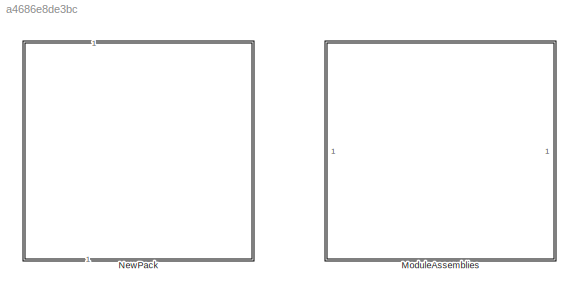
MODEL slx_a4686e8de3bc
KIND library
CONFIG SolverName = VariableStepAuto
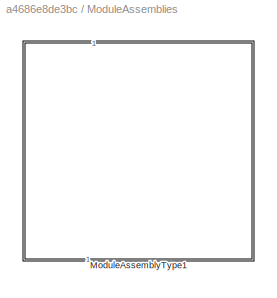
BLOCK [SubSystem] ModuleAssemblies
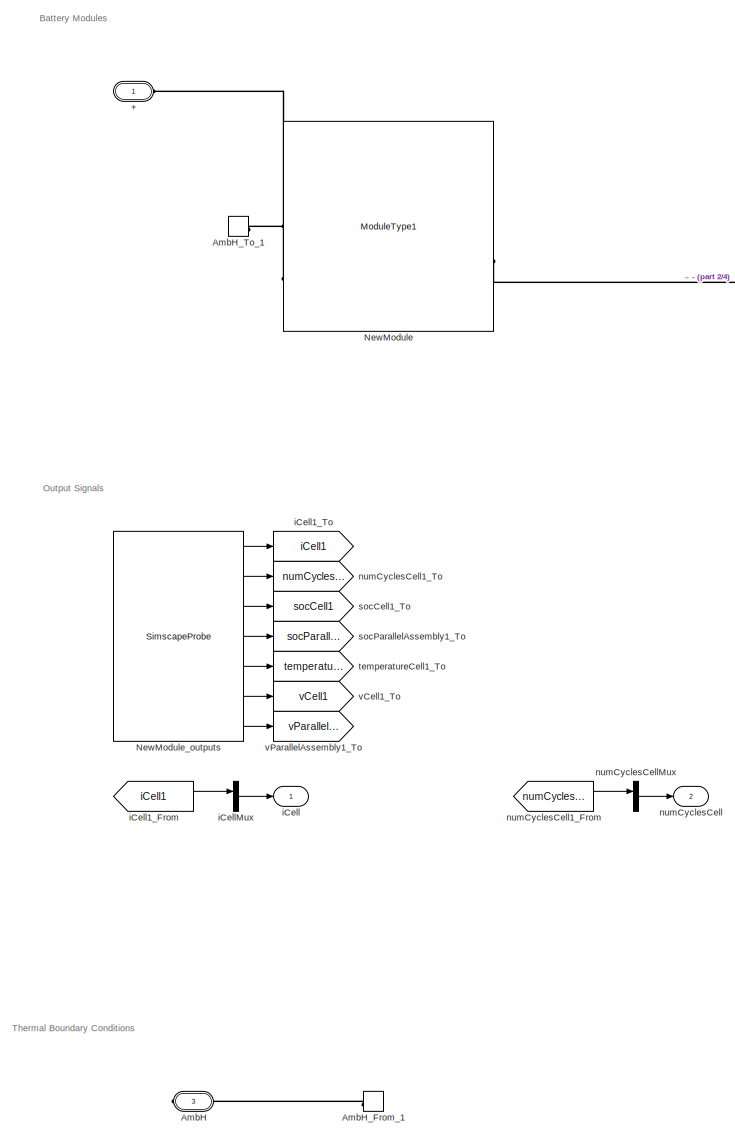
[diagram: ModuleAssemblies/ModuleAssemblyType1 - part 1/4, left side, full height]
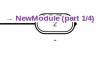
[diagram: ModuleAssemblies/ModuleAssemblyType1 - part 2/4, top right region]
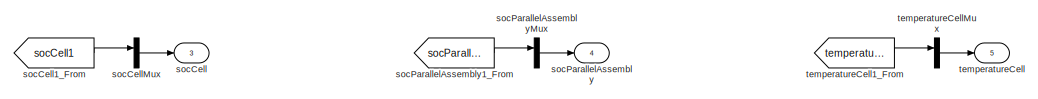
[diagram: ModuleAssemblies/ModuleAssemblyType1 - part 3/4, bottom center region]
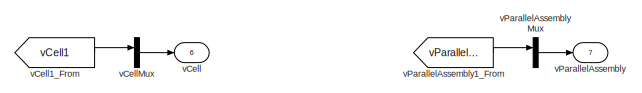
[diagram: ModuleAssemblies/ModuleAssemblyType1 - part 4/4, bottom right region]
BLOCK [SubSystem] ModuleAssemblies/ModuleAssemblyType1
  CopyFcn = battery_builder_rtmsupport('copyfcn',gcbh);
  LoadFcn = battery_builder_rtmsupport('loadfcn',gcbh);
  PortSchema = {"entries":[{"content":{"sides":[{"content":{"connectorIds":["LConn1"]},"type":"ConnectorPlacement.EquallySpacedRectSide","uuid":"b80c7ed6-8bcf-495e-8bd2-4ce7b8933480"},{"content":{"connectorIds":["RConn1","RConn2"],"side":"RIGHT"},"type":"ConnectorPlacement.EquallySpacedRectSide","uuid":"649142ec-37a1-41a5-9b4e-f1dba192e47a"},{"content":{"side":"TOP"},"type":"ConnectorPlacement.EquallySpacedRectS...<+428ch>  <repeated x4 — deduplicated; at blocks: ModuleAssemblyType1, NewPack, ModuleAssembly2, NewModuleAssembly>
  PreCopyFcn = battery_builder_rtmsupport('precopyfcn',gcbh);
  PreDeleteFcn = battery_builder_rtmsupport('predeletefcn',gcbh);
BLOCK [PMIOPort] ModuleAssemblies/ModuleAssemblyType1/+
  Side = Left
BLOCK [PMIOPort] ModuleAssemblies/ModuleAssemblyType1/-
  Port = 2
  Side = Right
BLOCK [PMIOPort] ModuleAssemblies/ModuleAssemblyType1/AmbH
  ConnectionType = Connection: foundation.thermal.thermal
  Port = 3
  Side = Right
BLOCK [ConnectionLabel] ModuleAssemblies/ModuleAssemblyType1/AmbH_From_1
  Label = ambH_1
BLOCK [ConnectionLabel] ModuleAssemblies/ModuleAssemblyType1/AmbH_To_1
  Label = ambH_1
BLOCK [Reference] ModuleAssemblies/ModuleAssemblyType1/NewModule  REF=Battery_Pack_lib/Modules/ModuleType1
  SourceBlock = Battery_Pack_lib/Modules/ModuleType1
  SourceType = ModuleType1
BLOCK [SimscapeProbe] ModuleAssemblies/ModuleAssemblyType1/NewModule_outputs
  BoundBlock = 3
  Variables = {"iCell":{"Probing":"ON"},"numCyclesCell":{"Probing":"ON"},"socCell":{"Probing":"ON"},"socParallelAssembly":{"Probing":"ON"},"temperatureCell":{"Probing":"ON"},"vCell":{"Probing":"ON"},"vParallelAssembly":{"Probing":"ON"}}  <repeated x3 — deduplicated; at blocks: NewModule_outputs>
BLOCK [Outport] ModuleAssemblies/ModuleAssemblyType1/iCell
BLOCK [From] ModuleAssemblies/ModuleAssemblyType1/iCell1_From
  GotoTag = iCell1
BLOCK [Goto] ModuleAssemblies/ModuleAssemblyType1/iCell1_To
  GotoTag = iCell1
BLOCK [Mux] ModuleAssemblies/ModuleAssemblyType1/iCellMux
  DisplayOption = bar
  Inputs = 1
BLOCK [Outport] ModuleAssemblies/ModuleAssemblyType1/numCyclesCell
  Port = 2
BLOCK [From] ModuleAssemblies/ModuleAssemblyType1/numCyclesCell1_From
  GotoTag = numCyclesCell1
BLOCK [Goto] ModuleAssemblies/ModuleAssemblyType1/numCyclesCell1_To
  GotoTag = numCyclesCell1
BLOCK [Mux] ModuleAssemblies/ModuleAssemblyType1/numCyclesCellMux
  DisplayOption = bar
  Inputs = 1
BLOCK [Outport] ModuleAssemblies/ModuleAssemblyType1/socCell
  Port = 3
BLOCK [From] ModuleAssemblies/ModuleAssemblyType1/socCell1_From
  GotoTag = socCell1
BLOCK [Goto] ModuleAssemblies/ModuleAssemblyType1/socCell1_To
  GotoTag = socCell1
BLOCK [Mux] ModuleAssemblies/ModuleAssemblyType1/socCellMux
  DisplayOption = bar
  Inputs = 1
BLOCK [Outport] ModuleAssemblies/ModuleAssemblyType1/socParallelAssembly
  Port = 4
BLOCK [From] ModuleAssemblies/ModuleAssemblyType1/socParallelAssembly1_From
  GotoTag = socParallelAssembly1
BLOCK [Goto] ModuleAssemblies/ModuleAssemblyType1/socParallelAssembly1_To
  GotoTag = socParallelAssembly1
BLOCK [Mux] ModuleAssemblies/ModuleAssemblyType1/socParallelAssemblyMux
  DisplayOption = bar
  Inputs = 1
BLOCK [Outport] ModuleAssemblies/ModuleAssemblyType1/temperatureCell
  Port = 5
BLOCK [From] ModuleAssemblies/ModuleAssemblyType1/temperatureCell1_From
  GotoTag = temperatureCell1
BLOCK [Goto] ModuleAssemblies/ModuleAssemblyType1/temperatureCell1_To
  GotoTag = temperatureCell1
BLOCK [Mux] ModuleAssemblies/ModuleAssemblyType1/temperatureCellMux
  DisplayOption = bar
  Inputs = 1
BLOCK [Outport] ModuleAssemblies/ModuleAssemblyType1/vCell
  Port = 6
BLOCK [From] ModuleAssemblies/ModuleAssemblyType1/vCell1_From
  GotoTag = vCell1
BLOCK [Goto] ModuleAssemblies/ModuleAssemblyType1/vCell1_To
  GotoTag = vCell1
BLOCK [Mux] ModuleAssemblies/ModuleAssemblyType1/vCellMux
  DisplayOption = bar
  Inputs = 1
BLOCK [Outport] ModuleAssemblies/ModuleAssemblyType1/vParallelAssembly
  Port = 7
BLOCK [From] ModuleAssemblies/ModuleAssemblyType1/vParallelAssembly1_From
  GotoTag = vParallelAssembly1
BLOCK [Goto] ModuleAssemblies/ModuleAssemblyType1/vParallelAssembly1_To
  GotoTag = vParallelAssembly1
BLOCK [Mux] ModuleAssemblies/ModuleAssemblyType1/vParallelAssemblyMux
  DisplayOption = bar
  Inputs = 1
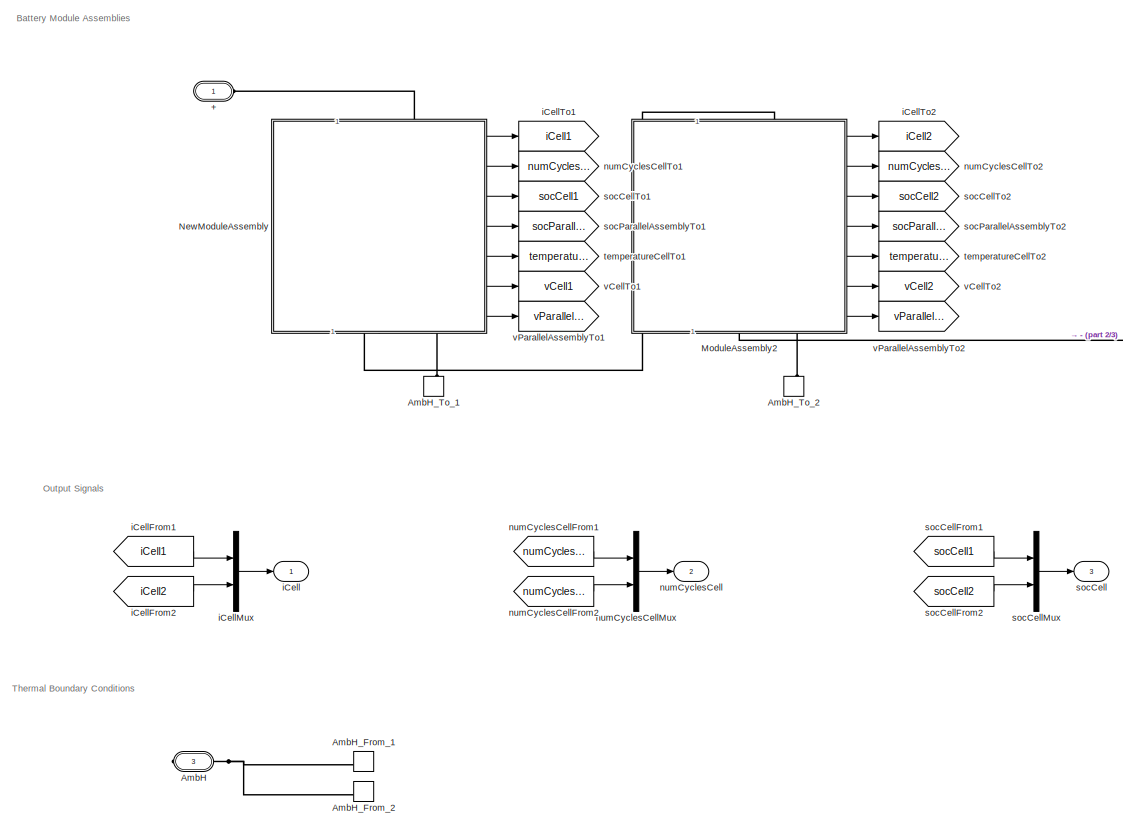
[diagram: NewPack - part 1/3, left side, full height]
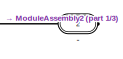
[diagram: NewPack - part 2/3, top right region]
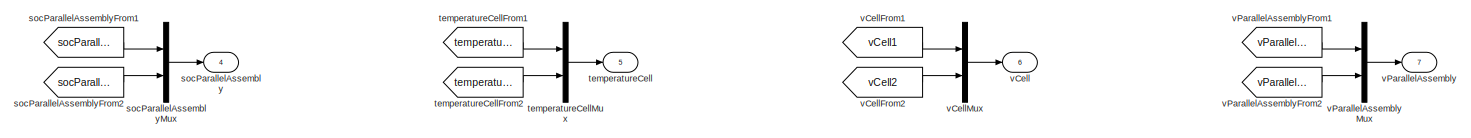
[diagram: NewPack - part 3/3, bottom right region]
BLOCK [SubSystem] NewPack
  CopyFcn = battery_builder_rtmsupport('copyfcn',gcbh);
  LoadFcn = battery_builder_rtmsupport('loadfcn',gcbh);
  PreCopyFcn = battery_builder_rtmsupport('precopyfcn',gcbh);
  PreDeleteFcn = battery_builder_rtmsupport('predeletefcn',gcbh);
BLOCK [PMIOPort] NewPack/+
  Side = Left
BLOCK [PMIOPort] NewPack/-
  Port = 2
  Side = Right
BLOCK [PMIOPort] NewPack/AmbH
  ConnectionType = Connection: foundation.thermal.thermal
  Port = 3
  Side = Right
BLOCK [ConnectionLabel] NewPack/AmbH_From_1
  Label = ambH_1
BLOCK [ConnectionLabel] NewPack/AmbH_From_2
  Label = ambH_2
BLOCK [ConnectionLabel] NewPack/AmbH_To_1
  Label = ambH_1
  NameLocation = right
BLOCK [ConnectionLabel] NewPack/AmbH_To_2
  Label = ambH_2
  NameLocation = right
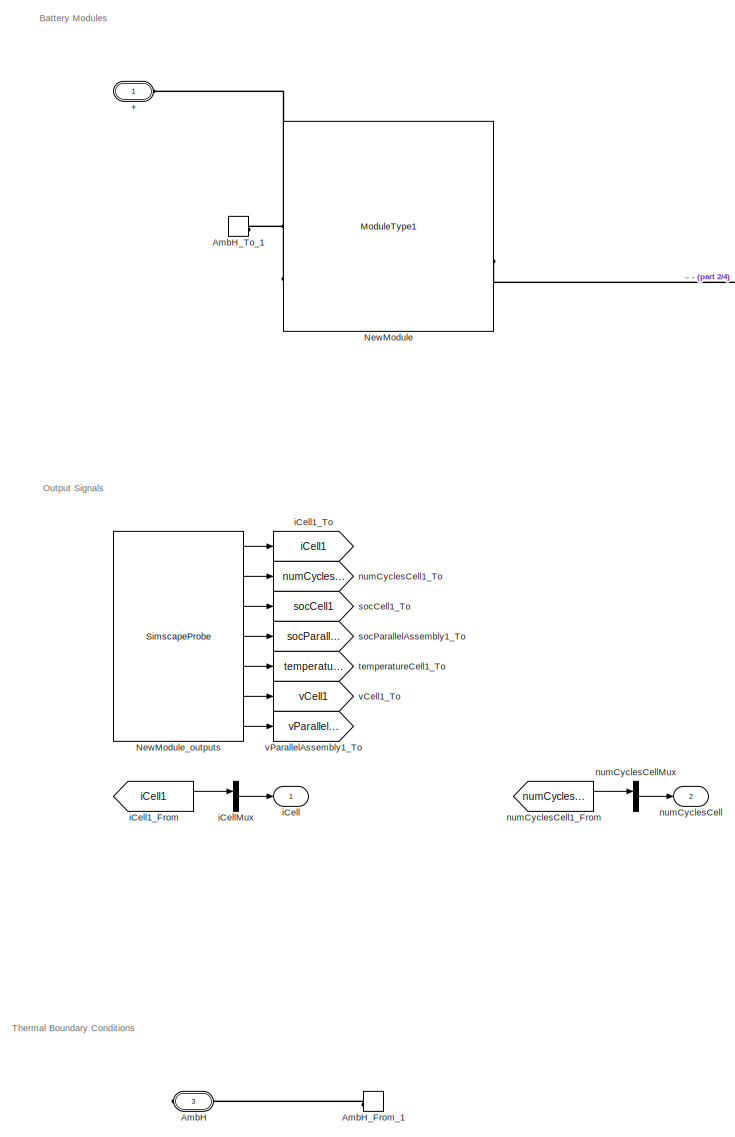
[diagram: NewPack/ModuleAssembly2 - part 1/4, left side, full height]
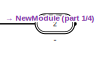
[diagram: NewPack/ModuleAssembly2 - part 2/4, top right region]
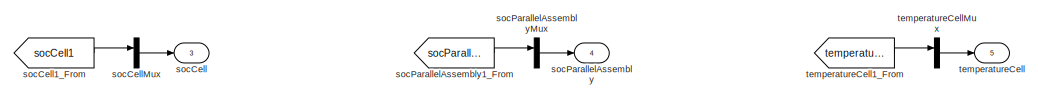
[diagram: NewPack/ModuleAssembly2 - part 3/4, bottom center region]
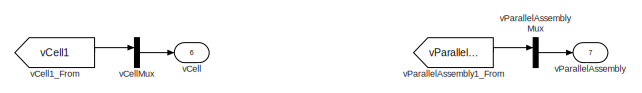
[diagram: NewPack/ModuleAssembly2 - part 4/4, bottom right region]
BLOCK [SubSystem] NewPack/ModuleAssembly2
  CopyFcn = battery_builder_rtmsupport('copyfcn',gcbh);
  LoadFcn = battery_builder_rtmsupport('loadfcn',gcbh);
  PreCopyFcn = battery_builder_rtmsupport('precopyfcn',gcbh);
  PreDeleteFcn = battery_builder_rtmsupport('predeletefcn',gcbh);
BLOCK [PMIOPort] NewPack/ModuleAssembly2/+
  Side = Left
BLOCK [PMIOPort] NewPack/ModuleAssembly2/-
  Port = 2
  Side = Right
BLOCK [PMIOPort] NewPack/ModuleAssembly2/AmbH
  ConnectionType = Connection: foundation.thermal.thermal
  Port = 3
  Side = Right
BLOCK [ConnectionLabel] NewPack/ModuleAssembly2/AmbH_From_1
  Label = ambH_1
BLOCK [ConnectionLabel] NewPack/ModuleAssembly2/AmbH_To_1
  Label = ambH_1
BLOCK [Reference] NewPack/ModuleAssembly2/NewModule  REF=Battery_Pack_lib/Modules/ModuleType1
  SourceBlock = Battery_Pack_lib/Modules/ModuleType1
  SourceType = ModuleType1
BLOCK [SimscapeProbe] NewPack/ModuleAssembly2/NewModule_outputs
  BoundBlock = 84
BLOCK [Outport] NewPack/ModuleAssembly2/iCell
BLOCK [From] NewPack/ModuleAssembly2/iCell1_From
  GotoTag = iCell1
BLOCK [Goto] NewPack/ModuleAssembly2/iCell1_To
  GotoTag = iCell1
BLOCK [Mux] NewPack/ModuleAssembly2/iCellMux
  DisplayOption = bar
  Inputs = 1
BLOCK [Outport] NewPack/ModuleAssembly2/numCyclesCell
  Port = 2
BLOCK [From] NewPack/ModuleAssembly2/numCyclesCell1_From
  GotoTag = numCyclesCell1
BLOCK [Goto] NewPack/ModuleAssembly2/numCyclesCell1_To
  GotoTag = numCyclesCell1
BLOCK [Mux] NewPack/ModuleAssembly2/numCyclesCellMux
  DisplayOption = bar
  Inputs = 1
BLOCK [Outport] NewPack/ModuleAssembly2/socCell
  Port = 3
BLOCK [From] NewPack/ModuleAssembly2/socCell1_From
  GotoTag = socCell1
BLOCK [Goto] NewPack/ModuleAssembly2/socCell1_To
  GotoTag = socCell1
BLOCK [Mux] NewPack/ModuleAssembly2/socCellMux
  DisplayOption = bar
  Inputs = 1
BLOCK [Outport] NewPack/ModuleAssembly2/socParallelAssembly
  Port = 4
BLOCK [From] NewPack/ModuleAssembly2/socParallelAssembly1_From
  GotoTag = socParallelAssembly1
BLOCK [Goto] NewPack/ModuleAssembly2/socParallelAssembly1_To
  GotoTag = socParallelAssembly1
BLOCK [Mux] NewPack/ModuleAssembly2/socParallelAssemblyMux
  DisplayOption = bar
  Inputs = 1
BLOCK [Outport] NewPack/ModuleAssembly2/temperatureCell
  Port = 5
BLOCK [From] NewPack/ModuleAssembly2/temperatureCell1_From
  GotoTag = temperatureCell1
BLOCK [Goto] NewPack/ModuleAssembly2/temperatureCell1_To
  GotoTag = temperatureCell1
BLOCK [Mux] NewPack/ModuleAssembly2/temperatureCellMux
  DisplayOption = bar
  Inputs = 1
BLOCK [Outport] NewPack/ModuleAssembly2/vCell
  Port = 6
BLOCK [From] NewPack/ModuleAssembly2/vCell1_From
  GotoTag = vCell1
BLOCK [Goto] NewPack/ModuleAssembly2/vCell1_To
  GotoTag = vCell1
BLOCK [Mux] NewPack/ModuleAssembly2/vCellMux
  DisplayOption = bar
  Inputs = 1
BLOCK [Outport] NewPack/ModuleAssembly2/vParallelAssembly
  Port = 7
BLOCK [From] NewPack/ModuleAssembly2/vParallelAssembly1_From
  GotoTag = vParallelAssembly1
BLOCK [Goto] NewPack/ModuleAssembly2/vParallelAssembly1_To
  GotoTag = vParallelAssembly1
BLOCK [Mux] NewPack/ModuleAssembly2/vParallelAssemblyMux
  DisplayOption = bar
  Inputs = 1
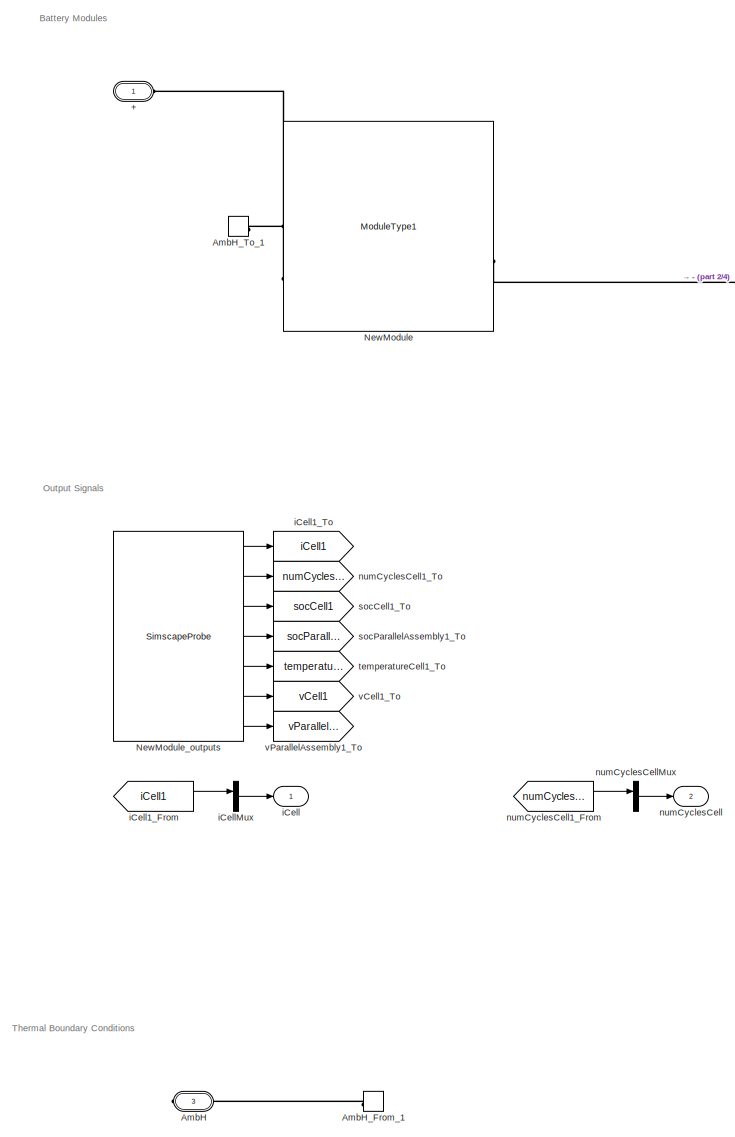
[diagram: NewPack/NewModuleAssembly - part 1/4, left side, full height]
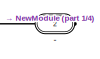
[diagram: NewPack/NewModuleAssembly - part 2/4, top right region]
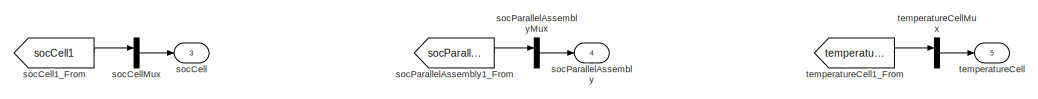
[diagram: NewPack/NewModuleAssembly - part 3/4, bottom center region]
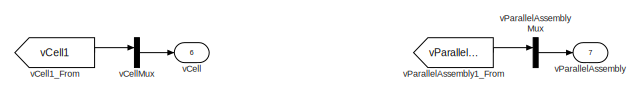
[diagram: NewPack/NewModuleAssembly - part 4/4, bottom right region]
BLOCK [SubSystem] NewPack/NewModuleAssembly
  CopyFcn = battery_builder_rtmsupport('copyfcn',gcbh);
  LoadFcn = battery_builder_rtmsupport('loadfcn',gcbh);
  PreCopyFcn = battery_builder_rtmsupport('precopyfcn',gcbh);
  PreDeleteFcn = battery_builder_rtmsupport('predeletefcn',gcbh);
BLOCK [PMIOPort] NewPack/NewModuleAssembly/+
  Side = Left
BLOCK [PMIOPort] NewPack/NewModuleAssembly/-
  Port = 2
  Side = Right
BLOCK [PMIOPort] NewPack/NewModuleAssembly/AmbH
  ConnectionType = Connection: foundation.thermal.thermal
  Port = 3
  Side = Right
BLOCK [ConnectionLabel] NewPack/NewModuleAssembly/AmbH_From_1
  Label = ambH_1
BLOCK [ConnectionLabel] NewPack/NewModuleAssembly/AmbH_To_1
  Label = ambH_1
BLOCK [Reference] NewPack/NewModuleAssembly/NewModule  REF=Battery_Pack_lib/Modules/ModuleType1
  SourceBlock = Battery_Pack_lib/Modules/ModuleType1
  SourceType = ModuleType1
BLOCK [SimscapeProbe] NewPack/NewModuleAssembly/NewModule_outputs
  BoundBlock = 45
BLOCK [Outport] NewPack/NewModuleAssembly/iCell
BLOCK [From] NewPack/NewModuleAssembly/iCell1_From
  GotoTag = iCell1
BLOCK [Goto] NewPack/NewModuleAssembly/iCell1_To
  GotoTag = iCell1
BLOCK [Mux] NewPack/NewModuleAssembly/iCellMux
  DisplayOption = bar
  Inputs = 1
BLOCK [Outport] NewPack/NewModuleAssembly/numCyclesCell
  Port = 2
BLOCK [From] NewPack/NewModuleAssembly/numCyclesCell1_From
  GotoTag = numCyclesCell1
BLOCK [Goto] NewPack/NewModuleAssembly/numCyclesCell1_To
  GotoTag = numCyclesCell1
BLOCK [Mux] NewPack/NewModuleAssembly/numCyclesCellMux
  DisplayOption = bar
  Inputs = 1
BLOCK [Outport] NewPack/NewModuleAssembly/socCell
  Port = 3
BLOCK [From] NewPack/NewModuleAssembly/socCell1_From
  GotoTag = socCell1
BLOCK [Goto] NewPack/NewModuleAssembly/socCell1_To
  GotoTag = socCell1
BLOCK [Mux] NewPack/NewModuleAssembly/socCellMux
  DisplayOption = bar
  Inputs = 1
BLOCK [Outport] NewPack/NewModuleAssembly/socParallelAssembly
  Port = 4
BLOCK [From] NewPack/NewModuleAssembly/socParallelAssembly1_From
  GotoTag = socParallelAssembly1
BLOCK [Goto] NewPack/NewModuleAssembly/socParallelAssembly1_To
  GotoTag = socParallelAssembly1
BLOCK [Mux] NewPack/NewModuleAssembly/socParallelAssemblyMux
  DisplayOption = bar
  Inputs = 1
BLOCK [Outport] NewPack/NewModuleAssembly/temperatureCell
  Port = 5
BLOCK [From] NewPack/NewModuleAssembly/temperatureCell1_From
  GotoTag = temperatureCell1
BLOCK [Goto] NewPack/NewModuleAssembly/temperatureCell1_To
  GotoTag = temperatureCell1
BLOCK [Mux] NewPack/NewModuleAssembly/temperatureCellMux
  DisplayOption = bar
  Inputs = 1
BLOCK [Outport] NewPack/NewModuleAssembly/vCell
  Port = 6
BLOCK [From] NewPack/NewModuleAssembly/vCell1_From
  GotoTag = vCell1
BLOCK [Goto] NewPack/NewModuleAssembly/vCell1_To
  GotoTag = vCell1
BLOCK [Mux] NewPack/NewModuleAssembly/vCellMux
  DisplayOption = bar
  Inputs = 1
BLOCK [Outport] NewPack/NewModuleAssembly/vParallelAssembly
  Port = 7
BLOCK [From] NewPack/NewModuleAssembly/vParallelAssembly1_From
  GotoTag = vParallelAssembly1
BLOCK [Goto] NewPack/NewModuleAssembly/vParallelAssembly1_To
  GotoTag = vParallelAssembly1
BLOCK [Mux] NewPack/NewModuleAssembly/vParallelAssemblyMux
  DisplayOption = bar
  Inputs = 1
BLOCK [Outport] NewPack/iCell
BLOCK [From] NewPack/iCellFrom1
  GotoTag = iCell1
BLOCK [From] NewPack/iCellFrom2
  GotoTag = iCell2
BLOCK [Mux] NewPack/iCellMux
  DisplayOption = bar
  Inputs = 2
BLOCK [Goto] NewPack/iCellTo1
  GotoTag = iCell1
BLOCK [Goto] NewPack/iCellTo2
  GotoTag = iCell2
BLOCK [Outport] NewPack/numCyclesCell
  Port = 2
BLOCK [From] NewPack/numCyclesCellFrom1
  GotoTag = numCyclesCell1
BLOCK [From] NewPack/numCyclesCellFrom2
  GotoTag = numCyclesCell2
BLOCK [Mux] NewPack/numCyclesCellMux
  DisplayOption = bar
  Inputs = 2
BLOCK [Goto] NewPack/numCyclesCellTo1
  GotoTag = numCyclesCell1
BLOCK [Goto] NewPack/numCyclesCellTo2
  GotoTag = numCyclesCell2
BLOCK [Outport] NewPack/socCell
  Port = 3
BLOCK [From] NewPack/socCellFrom1
  GotoTag = socCell1
BLOCK [From] NewPack/socCellFrom2
  GotoTag = socCell2
BLOCK [Mux] NewPack/socCellMux
  DisplayOption = bar
  Inputs = 2
BLOCK [Goto] NewPack/socCellTo1
  GotoTag = socCell1
BLOCK [Goto] NewPack/socCellTo2
  GotoTag = socCell2
BLOCK [Outport] NewPack/socParallelAssembly
  Port = 4
BLOCK [From] NewPack/socParallelAssemblyFrom1
  GotoTag = socParallelAssembly1
BLOCK [From] NewPack/socParallelAssemblyFrom2
  GotoTag = socParallelAssembly2
BLOCK [Mux] NewPack/socParallelAssemblyMux
  DisplayOption = bar
  Inputs = 2
BLOCK [Goto] NewPack/socParallelAssemblyTo1
  GotoTag = socParallelAssembly1
BLOCK [Goto] NewPack/socParallelAssemblyTo2
  GotoTag = socParallelAssembly2
BLOCK [Outport] NewPack/temperatureCell
  Port = 5
BLOCK [From] NewPack/temperatureCellFrom1
  GotoTag = temperatureCell1
BLOCK [From] NewPack/temperatureCellFrom2
  GotoTag = temperatureCell2
BLOCK [Mux] NewPack/temperatureCellMux
  DisplayOption = bar
  Inputs = 2
BLOCK [Goto] NewPack/temperatureCellTo1
  GotoTag = temperatureCell1
BLOCK [Goto] NewPack/temperatureCellTo2
  GotoTag = temperatureCell2
BLOCK [Outport] NewPack/vCell
  Port = 6
BLOCK [From] NewPack/vCellFrom1
  GotoTag = vCell1
BLOCK [From] NewPack/vCellFrom2
  GotoTag = vCell2
BLOCK [Mux] NewPack/vCellMux
  DisplayOption = bar
  Inputs = 2
BLOCK [Goto] NewPack/vCellTo1
  GotoTag = vCell1
BLOCK [Goto] NewPack/vCellTo2
  GotoTag = vCell2
BLOCK [Outport] NewPack/vParallelAssembly
  Port = 7
BLOCK [From] NewPack/vParallelAssemblyFrom1
  GotoTag = vParallelAssembly1
BLOCK [From] NewPack/vParallelAssemblyFrom2
  GotoTag = vParallelAssembly2
BLOCK [Mux] NewPack/vParallelAssemblyMux
  DisplayOption = bar
  Inputs = 2
BLOCK [Goto] NewPack/vParallelAssemblyTo1
  GotoTag = vParallelAssembly1
BLOCK [Goto] NewPack/vParallelAssemblyTo2
  GotoTag = vParallelAssembly2
ANNOTATION ModuleAssemblies/ModuleAssemblyType1: Battery Modules
ANNOTATION ModuleAssemblies/ModuleAssemblyType1: Output Signals
ANNOTATION ModuleAssemblies/ModuleAssemblyType1: Thermal Boundary Conditions
ANNOTATION NewPack: Battery Module Assemblies
ANNOTATION NewPack: Output Signals
ANNOTATION NewPack: Thermal Boundary Conditions
ANNOTATION NewPack/ModuleAssembly2: Battery Modules
ANNOTATION NewPack/ModuleAssembly2: Output Signals
ANNOTATION NewPack/ModuleAssembly2: Thermal Boundary Conditions
ANNOTATION NewPack/NewModuleAssembly: Battery Modules
ANNOTATION NewPack/NewModuleAssembly: Output Signals
ANNOTATION NewPack/NewModuleAssembly: Thermal Boundary Conditions
LINE ModuleAssemblies/ModuleAssemblyType1/NewModule_outputs:1 -> ModuleAssemblies/ModuleAssemblyType1/iCell1_To:1
LINE ModuleAssemblies/ModuleAssemblyType1/NewModule_outputs:2 -> ModuleAssemblies/ModuleAssemblyType1/numCyclesCell1_To:1
LINE ModuleAssemblies/ModuleAssemblyType1/NewModule_outputs:3 -> ModuleAssemblies/ModuleAssemblyType1/socCell1_To:1
LINE ModuleAssemblies/ModuleAssemblyType1/NewModule_outputs:4 -> ModuleAssemblies/ModuleAssemblyType1/socParallelAssembly1_To:1
LINE ModuleAssemblies/ModuleAssemblyType1/NewModule_outputs:5 -> ModuleAssemblies/ModuleAssemblyType1/temperatureCell1_To:1
LINE ModuleAssemblies/ModuleAssemblyType1/NewModule_outputs:6 -> ModuleAssemblies/ModuleAssemblyType1/vCell1_To:1
LINE ModuleAssemblies/ModuleAssemblyType1/NewModule_outputs:7 -> ModuleAssemblies/ModuleAssemblyType1/vParallelAssembly1_To:1
LINE ModuleAssemblies/ModuleAssemblyType1/iCell1_From:1 -> ModuleAssemblies/ModuleAssemblyType1/iCellMux:1
LINE ModuleAssemblies/ModuleAssemblyType1/iCellMux:1 -> ModuleAssemblies/ModuleAssemblyType1/iCell:1
LINE ModuleAssemblies/ModuleAssemblyType1/numCyclesCell1_From:1 -> ModuleAssemblies/ModuleAssemblyType1/numCyclesCellMux:1
LINE ModuleAssemblies/ModuleAssemblyType1/numCyclesCellMux:1 -> ModuleAssemblies/ModuleAssemblyType1/numCyclesCell:1
LINE ModuleAssemblies/ModuleAssemblyType1/socCell1_From:1 -> ModuleAssemblies/ModuleAssemblyType1/socCellMux:1
LINE ModuleAssemblies/ModuleAssemblyType1/socCellMux:1 -> ModuleAssemblies/ModuleAssemblyType1/socCell:1
LINE ModuleAssemblies/ModuleAssemblyType1/socParallelAssembly1_From:1 -> ModuleAssemblies/ModuleAssemblyType1/socParallelAssemblyMux:1
LINE ModuleAssemblies/ModuleAssemblyType1/socParallelAssemblyMux:1 -> ModuleAssemblies/ModuleAssemblyType1/socParallelAssembly:1
LINE ModuleAssemblies/ModuleAssemblyType1/temperatureCell1_From:1 -> ModuleAssemblies/ModuleAssemblyType1/temperatureCellMux:1
LINE ModuleAssemblies/ModuleAssemblyType1/temperatureCellMux:1 -> ModuleAssemblies/ModuleAssemblyType1/temperatureCell:1
LINE ModuleAssemblies/ModuleAssemblyType1/vCell1_From:1 -> ModuleAssemblies/ModuleAssemblyType1/vCellMux:1
LINE ModuleAssemblies/ModuleAssemblyType1/vCellMux:1 -> ModuleAssemblies/ModuleAssemblyType1/vCell:1
LINE ModuleAssemblies/ModuleAssemblyType1/vParallelAssembly1_From:1 -> ModuleAssemblies/ModuleAssemblyType1/vParallelAssemblyMux:1
LINE ModuleAssemblies/ModuleAssemblyType1/vParallelAssemblyMux:1 -> ModuleAssemblies/ModuleAssemblyType1/vParallelAssembly:1
LINE NewPack/ModuleAssembly2/NewModule_outputs:1 -> NewPack/ModuleAssembly2/iCell1_To:1
LINE NewPack/ModuleAssembly2/NewModule_outputs:2 -> NewPack/ModuleAssembly2/numCyclesCell1_To:1
LINE NewPack/ModuleAssembly2/NewModule_outputs:3 -> NewPack/ModuleAssembly2/socCell1_To:1
LINE NewPack/ModuleAssembly2/NewModule_outputs:4 -> NewPack/ModuleAssembly2/socParallelAssembly1_To:1
LINE NewPack/ModuleAssembly2/NewModule_outputs:5 -> NewPack/ModuleAssembly2/temperatureCell1_To:1
LINE NewPack/ModuleAssembly2/NewModule_outputs:6 -> NewPack/ModuleAssembly2/vCell1_To:1
LINE NewPack/ModuleAssembly2/NewModule_outputs:7 -> NewPack/ModuleAssembly2/vParallelAssembly1_To:1
LINE NewPack/ModuleAssembly2/iCell1_From:1 -> NewPack/ModuleAssembly2/iCellMux:1
LINE NewPack/ModuleAssembly2/iCellMux:1 -> NewPack/ModuleAssembly2/iCell:1
LINE NewPack/ModuleAssembly2/numCyclesCell1_From:1 -> NewPack/ModuleAssembly2/numCyclesCellMux:1
LINE NewPack/ModuleAssembly2/numCyclesCellMux:1 -> NewPack/ModuleAssembly2/numCyclesCell:1
LINE NewPack/ModuleAssembly2/socCell1_From:1 -> NewPack/ModuleAssembly2/socCellMux:1
LINE NewPack/ModuleAssembly2/socCellMux:1 -> NewPack/ModuleAssembly2/socCell:1
LINE NewPack/ModuleAssembly2/socParallelAssembly1_From:1 -> NewPack/ModuleAssembly2/socParallelAssemblyMux:1
LINE NewPack/ModuleAssembly2/socParallelAssemblyMux:1 -> NewPack/ModuleAssembly2/socParallelAssembly:1
LINE NewPack/ModuleAssembly2/temperatureCell1_From:1 -> NewPack/ModuleAssembly2/temperatureCellMux:1
LINE NewPack/ModuleAssembly2/temperatureCellMux:1 -> NewPack/ModuleAssembly2/temperatureCell:1
LINE NewPack/ModuleAssembly2/vCell1_From:1 -> NewPack/ModuleAssembly2/vCellMux:1
LINE NewPack/ModuleAssembly2/vCellMux:1 -> NewPack/ModuleAssembly2/vCell:1
LINE NewPack/ModuleAssembly2/vParallelAssembly1_From:1 -> NewPack/ModuleAssembly2/vParallelAssemblyMux:1
LINE NewPack/ModuleAssembly2/vParallelAssemblyMux:1 -> NewPack/ModuleAssembly2/vParallelAssembly:1
LINE NewPack/ModuleAssembly2:1 -> NewPack/iCellTo2:1
LINE NewPack/ModuleAssembly2:2 -> NewPack/numCyclesCellTo2:1
LINE NewPack/ModuleAssembly2:3 -> NewPack/socCellTo2:1
LINE NewPack/ModuleAssembly2:4 -> NewPack/socParallelAssemblyTo2:1
LINE NewPack/ModuleAssembly2:5 -> NewPack/temperatureCellTo2:1
LINE NewPack/ModuleAssembly2:6 -> NewPack/vCellTo2:1
LINE NewPack/ModuleAssembly2:7 -> NewPack/vParallelAssemblyTo2:1
LINE NewPack/NewModuleAssembly/NewModule_outputs:1 -> NewPack/NewModuleAssembly/iCell1_To:1
LINE NewPack/NewModuleAssembly/NewModule_outputs:2 -> NewPack/NewModuleAssembly/numCyclesCell1_To:1
LINE NewPack/NewModuleAssembly/NewModule_outputs:3 -> NewPack/NewModuleAssembly/socCell1_To:1
LINE NewPack/NewModuleAssembly/NewModule_outputs:4 -> NewPack/NewModuleAssembly/socParallelAssembly1_To:1
LINE NewPack/NewModuleAssembly/NewModule_outputs:5 -> NewPack/NewModuleAssembly/temperatureCell1_To:1
LINE NewPack/NewModuleAssembly/NewModule_outputs:6 -> NewPack/NewModuleAssembly/vCell1_To:1
LINE NewPack/NewModuleAssembly/NewModule_outputs:7 -> NewPack/NewModuleAssembly/vParallelAssembly1_To:1
LINE NewPack/NewModuleAssembly/iCell1_From:1 -> NewPack/NewModuleAssembly/iCellMux:1
LINE NewPack/NewModuleAssembly/iCellMux:1 -> NewPack/NewModuleAssembly/iCell:1
LINE NewPack/NewModuleAssembly/numCyclesCell1_From:1 -> NewPack/NewModuleAssembly/numCyclesCellMux:1
LINE NewPack/NewModuleAssembly/numCyclesCellMux:1 -> NewPack/NewModuleAssembly/numCyclesCell:1
LINE NewPack/NewModuleAssembly/socCell1_From:1 -> NewPack/NewModuleAssembly/socCellMux:1
LINE NewPack/NewModuleAssembly/socCellMux:1 -> NewPack/NewModuleAssembly/socCell:1
LINE NewPack/NewModuleAssembly/socParallelAssembly1_From:1 -> NewPack/NewModuleAssembly/socParallelAssemblyMux:1
LINE NewPack/NewModuleAssembly/socParallelAssemblyMux:1 -> NewPack/NewModuleAssembly/socParallelAssembly:1
LINE NewPack/NewModuleAssembly/temperatureCell1_From:1 -> NewPack/NewModuleAssembly/temperatureCellMux:1
LINE NewPack/NewModuleAssembly/temperatureCellMux:1 -> NewPack/NewModuleAssembly/temperatureCell:1
LINE NewPack/NewModuleAssembly/vCell1_From:1 -> NewPack/NewModuleAssembly/vCellMux:1
LINE NewPack/NewModuleAssembly/vCellMux:1 -> NewPack/NewModuleAssembly/vCell:1
LINE NewPack/NewModuleAssembly/vParallelAssembly1_From:1 -> NewPack/NewModuleAssembly/vParallelAssemblyMux:1
LINE NewPack/NewModuleAssembly/vParallelAssemblyMux:1 -> NewPack/NewModuleAssembly/vParallelAssembly:1
LINE NewPack/NewModuleAssembly:1 -> NewPack/iCellTo1:1
LINE NewPack/NewModuleAssembly:2 -> NewPack/numCyclesCellTo1:1
LINE NewPack/NewModuleAssembly:3 -> NewPack/socCellTo1:1
LINE NewPack/NewModuleAssembly:4 -> NewPack/socParallelAssemblyTo1:1
LINE NewPack/NewModuleAssembly:5 -> NewPack/temperatureCellTo1:1
LINE NewPack/NewModuleAssembly:6 -> NewPack/vCellTo1:1
LINE NewPack/NewModuleAssembly:7 -> NewPack/vParallelAssemblyTo1:1
LINE NewPack/iCellFrom1:1 -> NewPack/iCellMux:1
LINE NewPack/iCellFrom2:1 -> NewPack/iCellMux:2
LINE NewPack/iCellMux:1 -> NewPack/iCell:1
LINE NewPack/numCyclesCellFrom1:1 -> NewPack/numCyclesCellMux:1
LINE NewPack/numCyclesCellFrom2:1 -> NewPack/numCyclesCellMux:2
LINE NewPack/numCyclesCellMux:1 -> NewPack/numCyclesCell:1
LINE NewPack/socCellFrom1:1 -> NewPack/socCellMux:1
LINE NewPack/socCellFrom2:1 -> NewPack/socCellMux:2
LINE NewPack/socCellMux:1 -> NewPack/socCell:1
LINE NewPack/socParallelAssemblyFrom1:1 -> NewPack/socParallelAssemblyMux:1
LINE NewPack/socParallelAssemblyFrom2:1 -> NewPack/socParallelAssemblyMux:2
LINE NewPack/socParallelAssemblyMux:1 -> NewPack/socParallelAssembly:1
LINE NewPack/temperatureCellFrom1:1 -> NewPack/temperatureCellMux:1
LINE NewPack/temperatureCellFrom2:1 -> NewPack/temperatureCellMux:2
LINE NewPack/temperatureCellMux:1 -> NewPack/temperatureCell:1
LINE NewPack/vCellFrom1:1 -> NewPack/vCellMux:1
LINE NewPack/vCellFrom2:1 -> NewPack/vCellMux:2
LINE NewPack/vCellMux:1 -> NewPack/vCell:1
LINE NewPack/vParallelAssemblyFrom1:1 -> NewPack/vParallelAssemblyMux:1
LINE NewPack/vParallelAssemblyFrom2:1 -> NewPack/vParallelAssemblyMux:2
LINE NewPack/vParallelAssemblyMux:1 -> NewPack/vParallelAssembly:1
PLINE ModuleAssemblies/ModuleAssemblyType1/+:RConn1 -- ModuleAssemblies/ModuleAssemblyType1/NewModule:LConn2
PLINE ModuleAssemblies/ModuleAssemblyType1/-:RConn1 -- ModuleAssemblies/ModuleAssemblyType1/NewModule:RConn1
PLINE ModuleAssemblies/ModuleAssemblyType1/AmbH:RConn1 -- ModuleAssemblies/ModuleAssemblyType1/AmbH_From_1:LConn1
PLINE ModuleAssemblies/ModuleAssemblyType1/AmbH_To_1:LConn1 -- ModuleAssemblies/ModuleAssemblyType1/NewModule:LConn1
PLINE NewPack/+:RConn1 -- NewPack/NewModuleAssembly:LConn1
PLINE NewPack/-:RConn1 -- NewPack/ModuleAssembly2:RConn1
PNET net1: NewPack/AmbH:RConn1 -- NewPack/AmbH_From_1:LConn1 -- NewPack/AmbH_From_2:LConn1
PLINE NewPack/AmbH_To_1:LConn1 -- NewPack/NewModuleAssembly:RConn2
PLINE NewPack/AmbH_To_2:LConn1 -- NewPack/ModuleAssembly2:RConn2
PLINE NewPack/ModuleAssembly2/+:RConn1 -- NewPack/ModuleAssembly2/NewModule:LConn2
PLINE NewPack/ModuleAssembly2/-:RConn1 -- NewPack/ModuleAssembly2/NewModule:RConn1
PLINE NewPack/ModuleAssembly2/AmbH:RConn1 -- NewPack/ModuleAssembly2/AmbH_From_1:LConn1
PLINE NewPack/ModuleAssembly2/AmbH_To_1:LConn1 -- NewPack/ModuleAssembly2/NewModule:LConn1
PLINE NewPack/ModuleAssembly2:LConn1 -- NewPack/NewModuleAssembly:RConn1
PLINE NewPack/NewModuleAssembly/+:RConn1 -- NewPack/NewModuleAssembly/NewModule:LConn2
PLINE NewPack/NewModuleAssembly/-:RConn1 -- NewPack/NewModuleAssembly/NewModule:RConn1
PLINE NewPack/NewModuleAssembly/AmbH:RConn1 -- NewPack/NewModuleAssembly/AmbH_From_1:LConn1
PLINE NewPack/NewModuleAssembly/AmbH_To_1:LConn1 -- NewPack/NewModuleAssembly/NewModule:LConn1
note: PNET lines group multi-terminal physical nets as a canonical sorted terminal list (undirected conserving connections); 2-terminal nets keep the pairwise PLINE form
